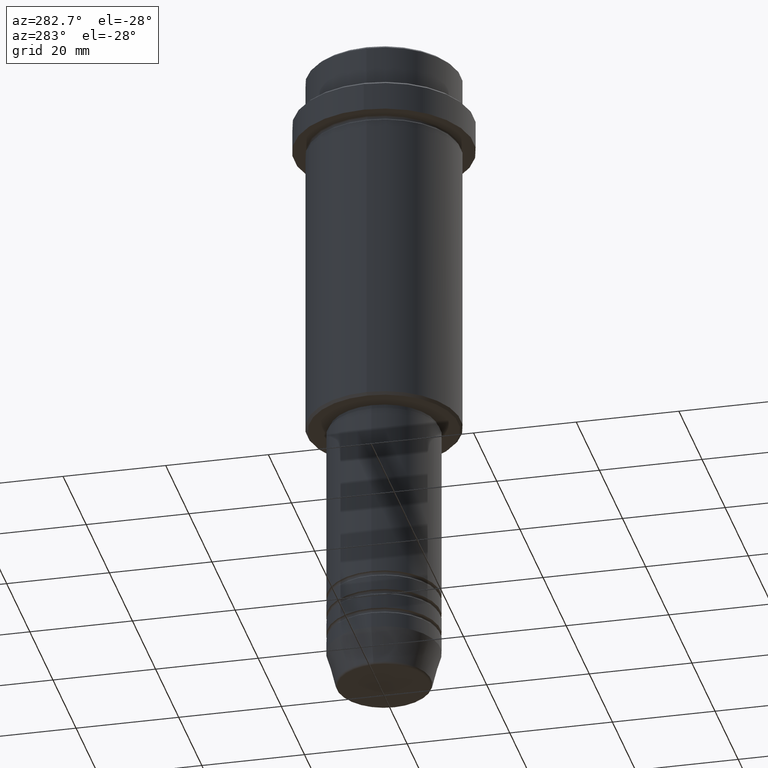
[diagram: clean part render]
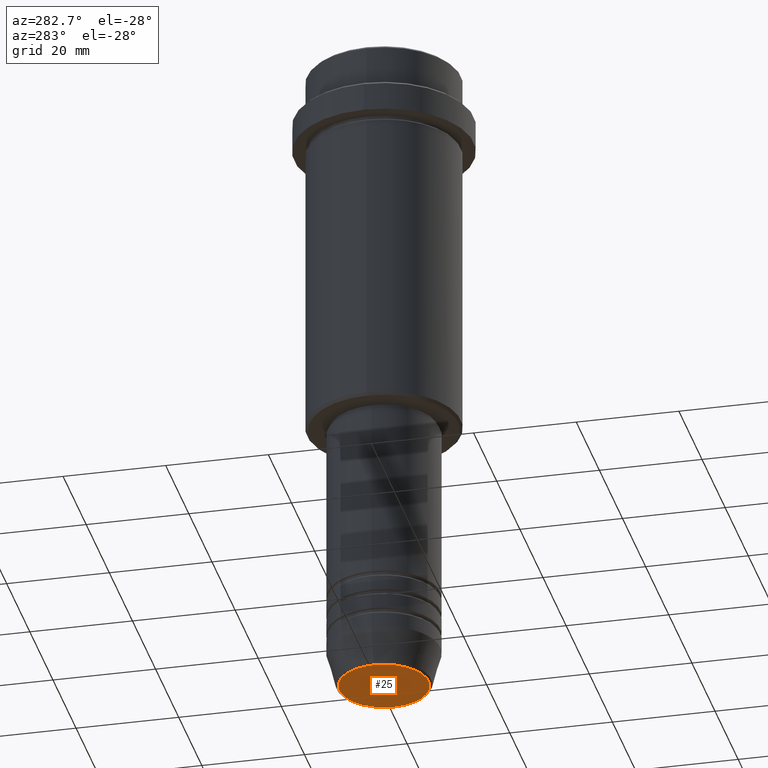
[diagram: same view with one face highlighted and labeled with its STEP entity id]
A machine part, auxiliary view. The second image highlights one B-rep face of the part: STEP entity #25.
In plain terms, the highlighted planar face has unit normal (0, -0, 1).
Its self-contained STEP definition (entity closure, byte-faithful):
#1 = CARTESIAN_POINT ( 'NONE',  ( -8.740692158992652949, 1.099999016768739259E-15, -130.0000000000000000 ) ) ;
#25 = ADVANCED_FACE ( 'NONE', ( #881 ), #115, .F. ) ;
#77 = VERTEX_POINT ( 'NONE', #500 ) ;
#115 = PLANE ( 'NONE',  #749 ) ;
#211 = ORIENTED_EDGE ( 'NONE', *, *, #1354, .T. ) ;
#222 = AXIS2_PLACEMENT_3D ( 'NONE', #654, #326, #640 ) ;
#326 = DIRECTION ( 'NONE',  ( 0.000000000000000000, 0.000000000000000000, -1.000000000000000000 ) ) ;
#327 = DIRECTION ( 'NONE',  ( 1.000000000000000000, 0.000000000000000000, 0.000000000000000000 ) ) ;
#341 = ORIENTED_EDGE ( 'NONE', *, *, #1249, .T. ) ;
#361 = DIRECTION ( 'NONE',  ( 1.000000000000000000, 0.000000000000000000, 0.000000000000000000 ) ) ;
#500 = CARTESIAN_POINT ( 'NONE',  ( 8.740692158992652949, 0.000000000000000000, -130.0000000000000000 ) ) ;
#570 = CARTESIAN_POINT ( 'NONE',  ( 0.000000000000000000, 0.000000000000000000, -130.0000000000000000 ) ) ;
#640 = DIRECTION ( 'NONE',  ( 1.000000000000000000, 0.000000000000000000, 0.000000000000000000 ) ) ;
#654 = CARTESIAN_POINT ( 'NONE',  ( 0.000000000000000000, 0.000000000000000000, -130.0000000000000000 ) ) ;
#659 = CIRCLE ( 'NONE', #729, 8.740692158992652949 ) ;
#729 = AXIS2_PLACEMENT_3D ( 'NONE', #1016, #1328, #361 ) ;
#749 = AXIS2_PLACEMENT_3D ( 'NONE', #570, #1409, #327 ) ;
#881 = FACE_OUTER_BOUND ( 'NONE', #1209, .T. ) ;
#1016 = CARTESIAN_POINT ( 'NONE',  ( 0.000000000000000000, 0.000000000000000000, -130.0000000000000000 ) ) ;
#1209 = EDGE_LOOP ( 'NONE', ( #211, #341 ) ) ;
#1249 = EDGE_CURVE ( 'NONE', #1394, #77, #1333, .T. ) ;
#1328 = DIRECTION ( 'NONE',  ( 0.000000000000000000, 0.000000000000000000, -1.000000000000000000 ) ) ;
#1333 = CIRCLE ( 'NONE', #222, 8.740692158992652949 ) ;
#1354 = EDGE_CURVE ( 'NONE', #77, #1394, #659, .T. ) ;
#1394 = VERTEX_POINT ( 'NONE', #1 ) ;
#1409 = DIRECTION ( 'NONE',  ( 0.000000000000000000, -0.000000000000000000, 1.000000000000000000 ) ) ;